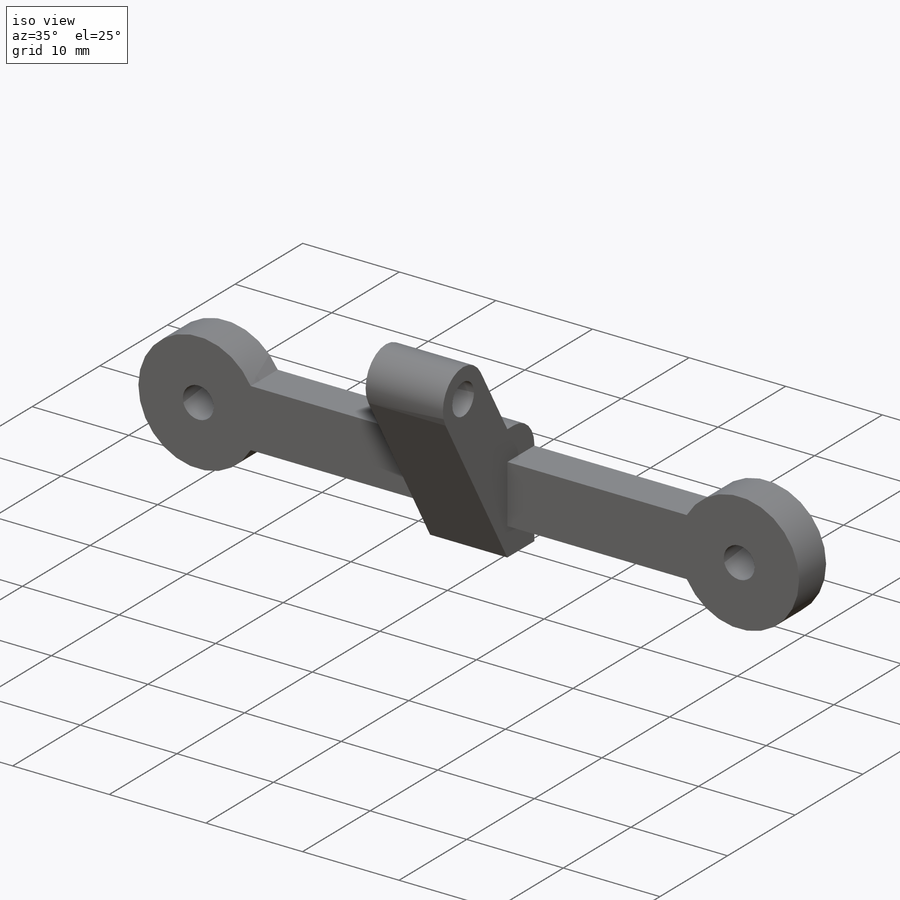
[diagram: iso view]
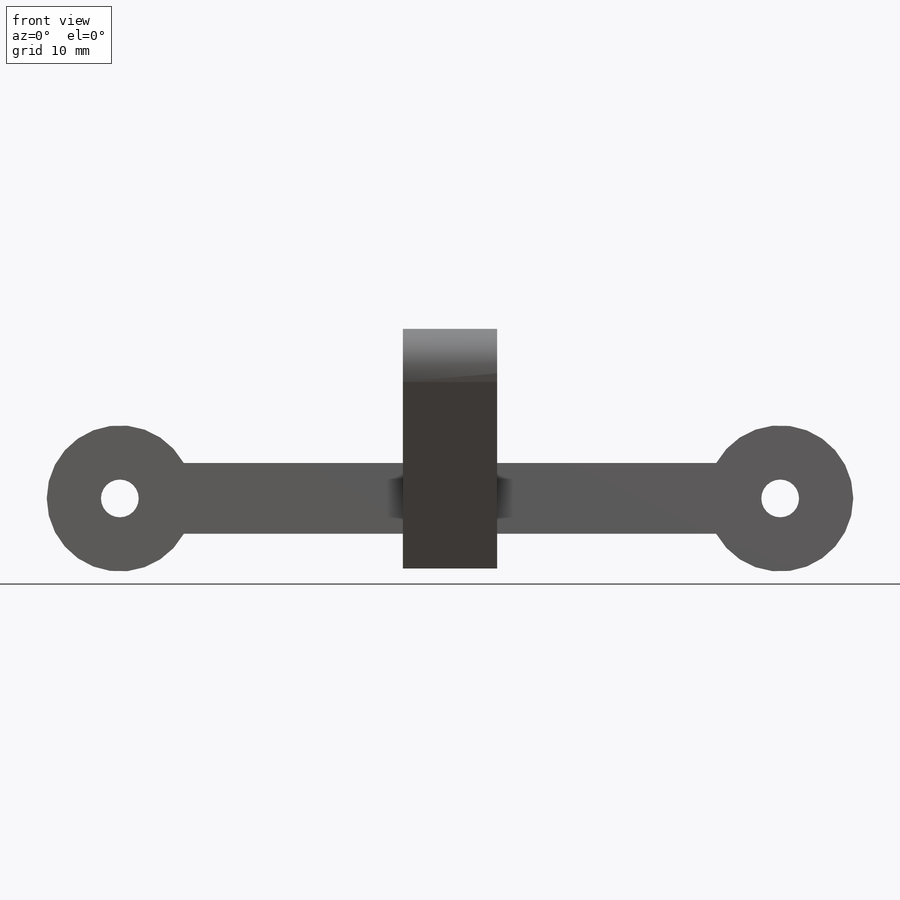
[diagram: front view]
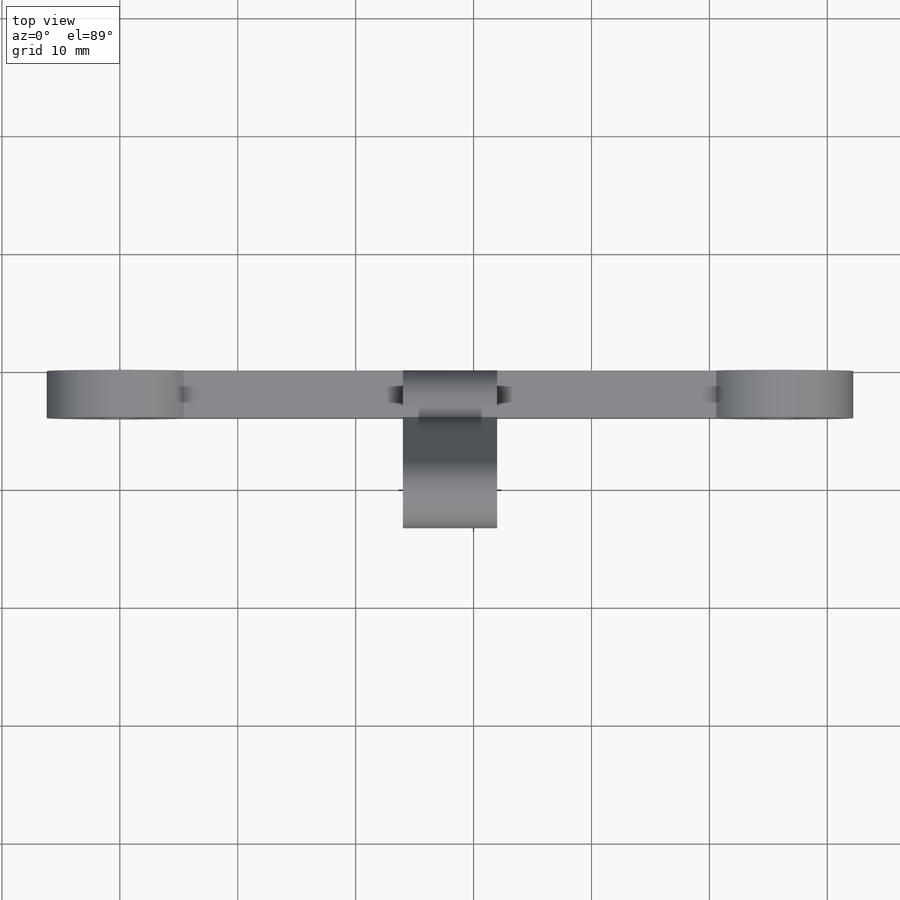
[diagram: top view]
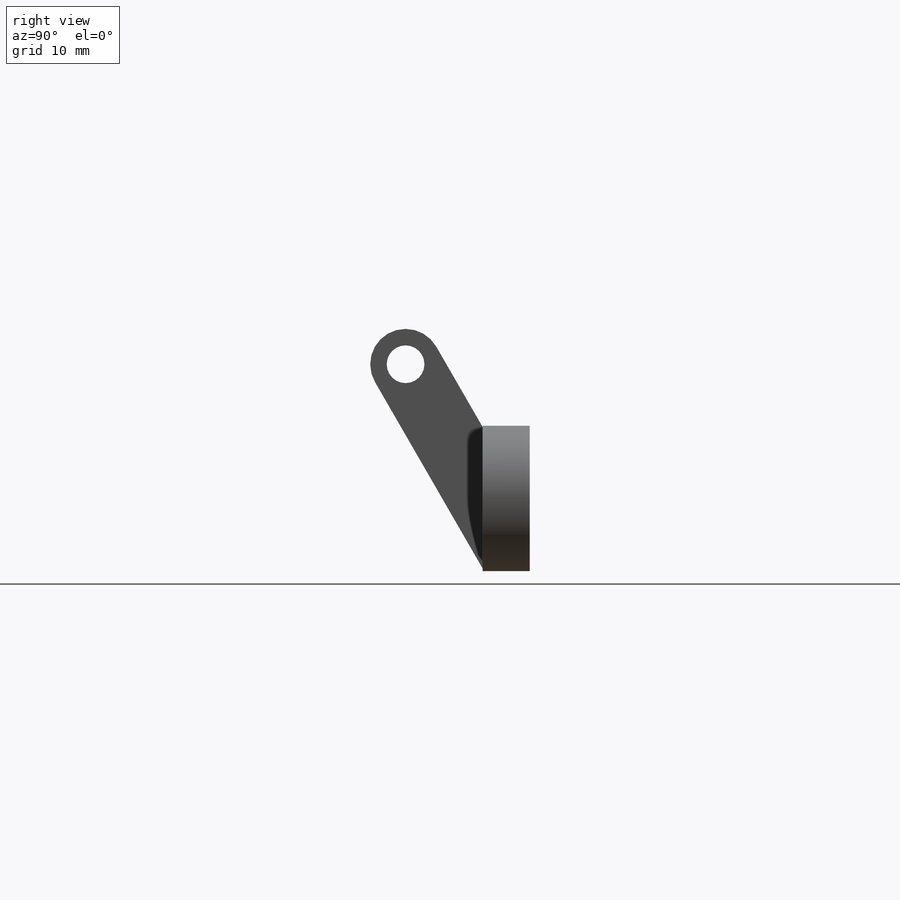
[diagram: right view]
SOLIDWORKS PART (.sldprt)
format: sldprt  version: not decoded by parser v0  size: 177,152 bytes
history: native  units: mm
features: plane x4, sketch x2, extrude x2, material x1, fillet x1 (+8 scaffold rows collapsed)
feature tree (18):
  scaffold x8  (default folders/planes/origin — collapsed)
  material  "Material <sin especificar>"
  plane  "Alzado"
  plane  "Planta"
  plane  "Vista lateral"
  sketch  "Croquis1"  dims[c1.D1=3.2mm c1.D3=3.1mm c1.D4=12.4mm c2.D3=8.0mm c2.D4=8.0mm c2.D5=8.0mm c2.D6=2.0mm c3.D4=3.0mm c3.D2=2.0 c4.D4=2.0]
  extrude  "Saliente-Extruir1"  Depth=4mm
  plane  "Plano1"  Offset=28mm
  sketch  "Croquis2"  dims[c1.D4=3.2mm c1.D5=6.0mm c1.D1=4.0mm c1.D2=5.5mm c1.D3=5.0mm c2.D4=4.0mm c2.D3=~3.441928mm c3.D3=150.0deg c3.D6=~9.894883mm c3.D1=4.0mm]
  extrude  "Saliente-Extruir2"  Depth=4mm
  fillet  "Redondeo1"  Radius=3mm
decode coverage: 5 of 5 modeling features carry decoded parameters
note: ~ marks probable driven/reference dimensions
note: suppression state not decoded; provenance and decode notes live in map.json
